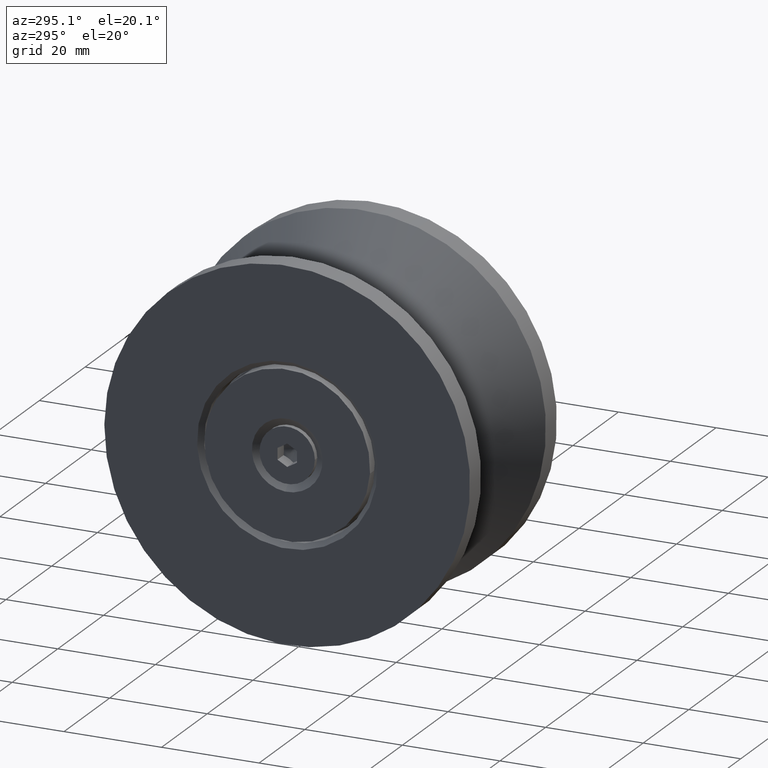
[diagram: clean part render]
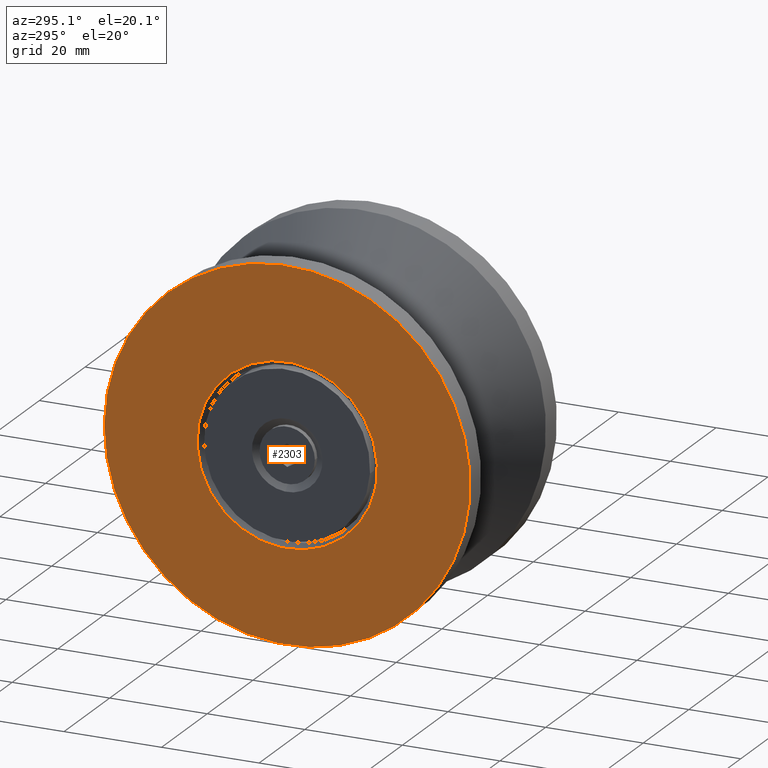
[diagram: same view with one face highlighted and labeled with its STEP entity id]
A machine part, auxiliary view. The second image highlights one B-rep face of the part: STEP entity #2303.
In plain terms, the highlighted planar face has unit normal (-1, -0, -0).
Its self-contained STEP definition (entity closure, byte-faithful):
#240=FACE_BOUND('',#703,.T.);
#282=PLANE('',#2721);
#558=FACE_OUTER_BOUND('',#702,.T.);
#702=EDGE_LOOP('',(#1770));
#703=EDGE_LOOP('',(#1771));
#871=CIRCLE('',#2720,18.5);
#872=CIRCLE('',#2722,37.5);
#1050=VERTEX_POINT('',#3923);
#1051=VERTEX_POINT('',#3927);
#1320=EDGE_CURVE('',#1050,#1050,#871,.T.);
#1321=EDGE_CURVE('',#1051,#1051,#872,.T.);
#1770=ORIENTED_EDGE('',*,*,#1321,.T.);
#1771=ORIENTED_EDGE('',*,*,#1320,.F.);
#2303=ADVANCED_FACE('',(#558,#240),#282,.T.);
#2720=AXIS2_PLACEMENT_3D('',#3925,#3168,#3169);
#2721=AXIS2_PLACEMENT_3D('',#3926,#3170,#3171);
#2722=AXIS2_PLACEMENT_3D('',#3928,#3172,#3173);
#3168=DIRECTION('center_axis',(1.,0.,0.));
#3169=DIRECTION('ref_axis',(0.,-1.,0.));
#3170=DIRECTION('center_axis',(1.,0.,0.));
#3171=DIRECTION('ref_axis',(0.,0.,-1.));
#3172=DIRECTION('center_axis',(1.,0.,0.));
#3173=DIRECTION('ref_axis',(0.,1.,0.));
#3923=CARTESIAN_POINT('',(21.,18.5,2.2655965784226E-15));
#3925=CARTESIAN_POINT('Origin',(21.,0.,0.));
#3926=CARTESIAN_POINT('Origin',(21.,27.5,0.));
#3927=CARTESIAN_POINT('',(21.,-37.5,-4.59242549680258E-15));
#3928=CARTESIAN_POINT('Origin',(21.,0.,0.));